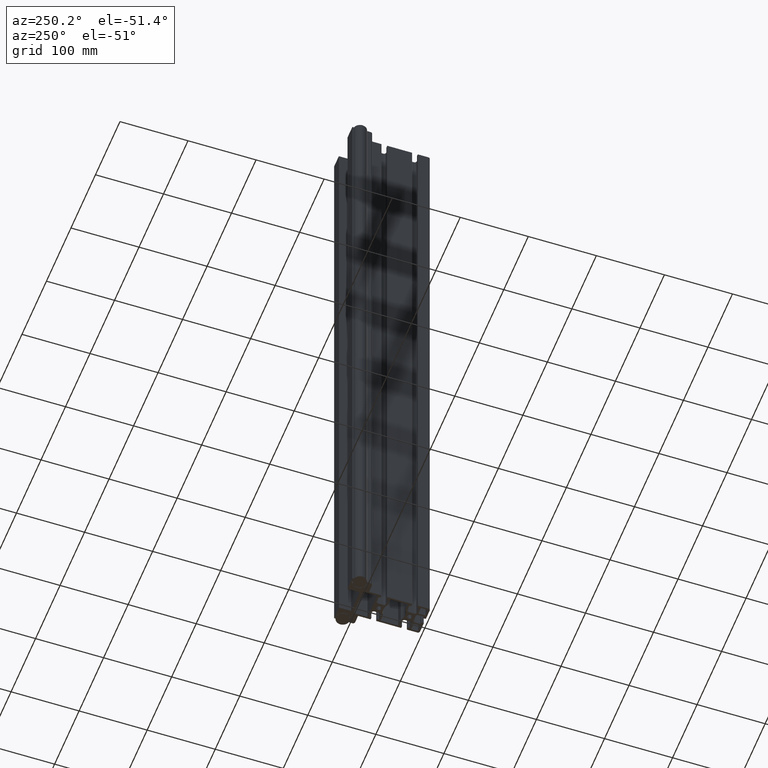
[diagram: clean part render]
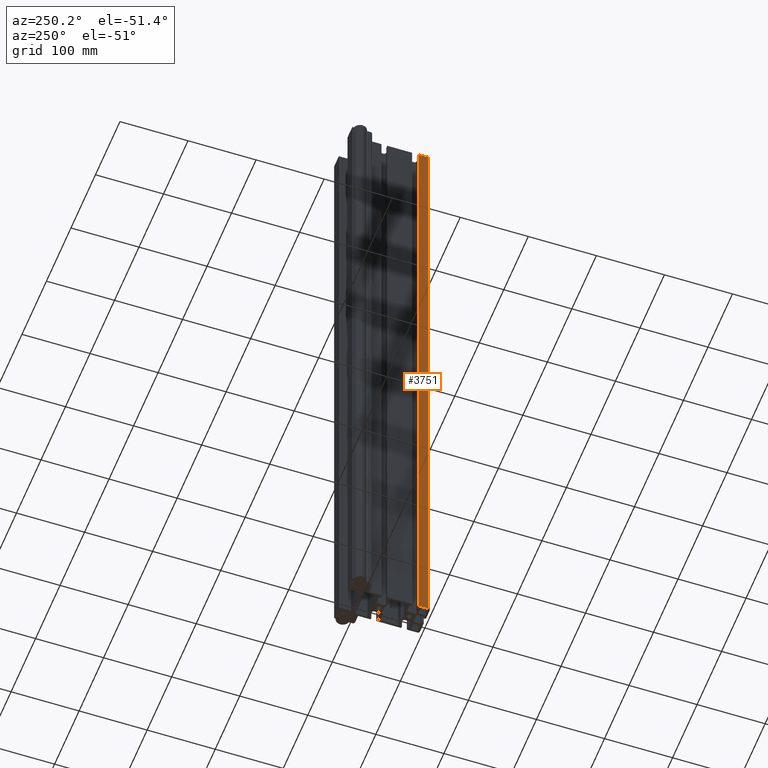
[diagram: same view with one face highlighted and labeled with its STEP entity id]
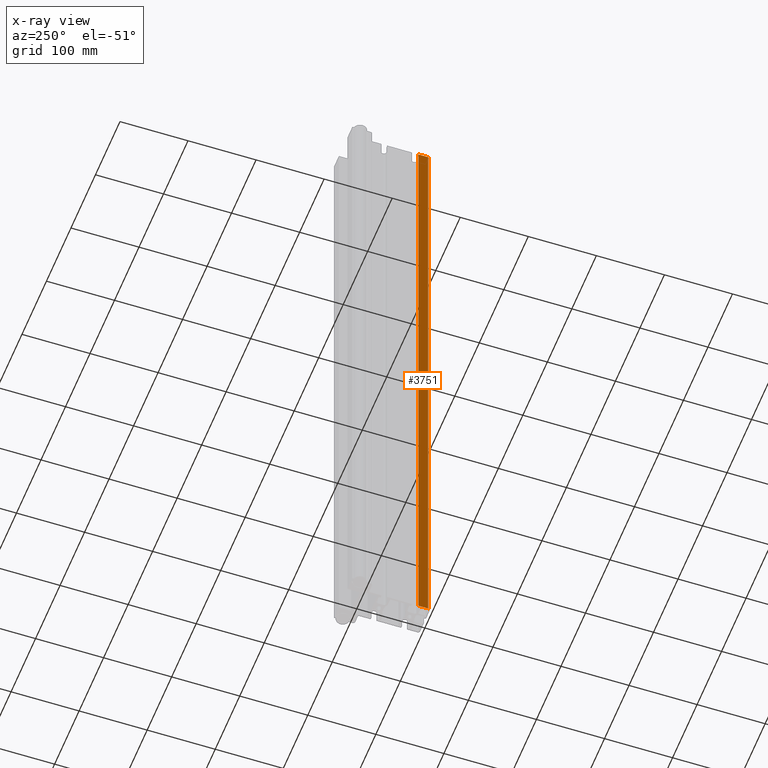
[diagram: x-ray of the same camera — body ghosted, the highlighted face saturated]
A machine part, auxiliary view. The second image highlights one B-rep face of the part: STEP entity #3751.
The next image is the same camera in x-ray: the body ghosted, the highlighted face saturated — about 0% of this face is hidden behind the body in this view.
In plain terms, the highlighted planar face has unit normal (-1, 0, 0).
Its self-contained STEP definition (entity closure, byte-faithful):
#79=PLANE('',#4172);
#197=FACE_OUTER_BOUND('',#398,.T.);
#398=EDGE_LOOP('',(#2906,#2907,#2908,#2909));
#859=LINE('',#5925,#1198);
#947=LINE('',#6288,#1286);
#948=LINE('',#6291,#1287);
#949=LINE('',#6292,#1288);
#1198=VECTOR('',#4693,10.);
#1286=VECTOR('',#5039,10.);
#1287=VECTOR('',#5042,10.);
#1288=VECTOR('',#5043,10.);
#1561=VERTEX_POINT('',#5922);
#1562=VERTEX_POINT('',#5924);
#1708=VERTEX_POINT('',#6286);
#1709=VERTEX_POINT('',#6290);
#1989=EDGE_CURVE('',#1561,#1562,#859,.T.);
#2171=EDGE_CURVE('',#1708,#1561,#947,.T.);
#2172=EDGE_CURVE('',#1709,#1708,#948,.T.);
#2173=EDGE_CURVE('',#1709,#1562,#949,.T.);
#2906=ORIENTED_EDGE('',*,*,#2171,.F.);
#2907=ORIENTED_EDGE('',*,*,#2172,.F.);
#2908=ORIENTED_EDGE('',*,*,#2173,.T.);
#2909=ORIENTED_EDGE('',*,*,#1989,.F.);
#3751=ADVANCED_FACE('',(#197),#79,.T.);
#4172=AXIS2_PLACEMENT_3D('',#6289,#5040,#5041);
#4693=DIRECTION('',(2.39239975729719E-15,1.,0.));
#5039=DIRECTION('',(0.,0.,-1.));
#5040=DIRECTION('center_axis',(-1.,2.39239975729719E-15,0.));
#5041=DIRECTION('ref_axis',(-2.39239975729719E-15,-1.,0.));
#5042=DIRECTION('',(-2.39239975729719E-15,-1.,0.));
#5043=DIRECTION('',(0.,0.,-1.));
#5922=CARTESIAN_POINT('',(-22.4999966471381,3.00000000000001,-500.));
#5924=CARTESIAN_POINT('',(-22.4999966471381,17.8500001639115,-500.));
#5925=CARTESIAN_POINT('',(-22.4999966471381,3.00000000000001,-500.));
#6286=CARTESIAN_POINT('',(-22.4999966471381,3.00000000000001,500.));
#6288=CARTESIAN_POINT('',(-22.4999966471381,3.00000000000001,0.));
#6289=CARTESIAN_POINT('Origin',(-22.4999966471381,17.8500001639115,0.));
#6290=CARTESIAN_POINT('',(-22.4999966471381,17.8500001639115,500.));
#6291=CARTESIAN_POINT('',(-22.4999966471381,3.00000000000001,500.));
#6292=CARTESIAN_POINT('',(-22.4999966471381,17.8500001639115,0.));